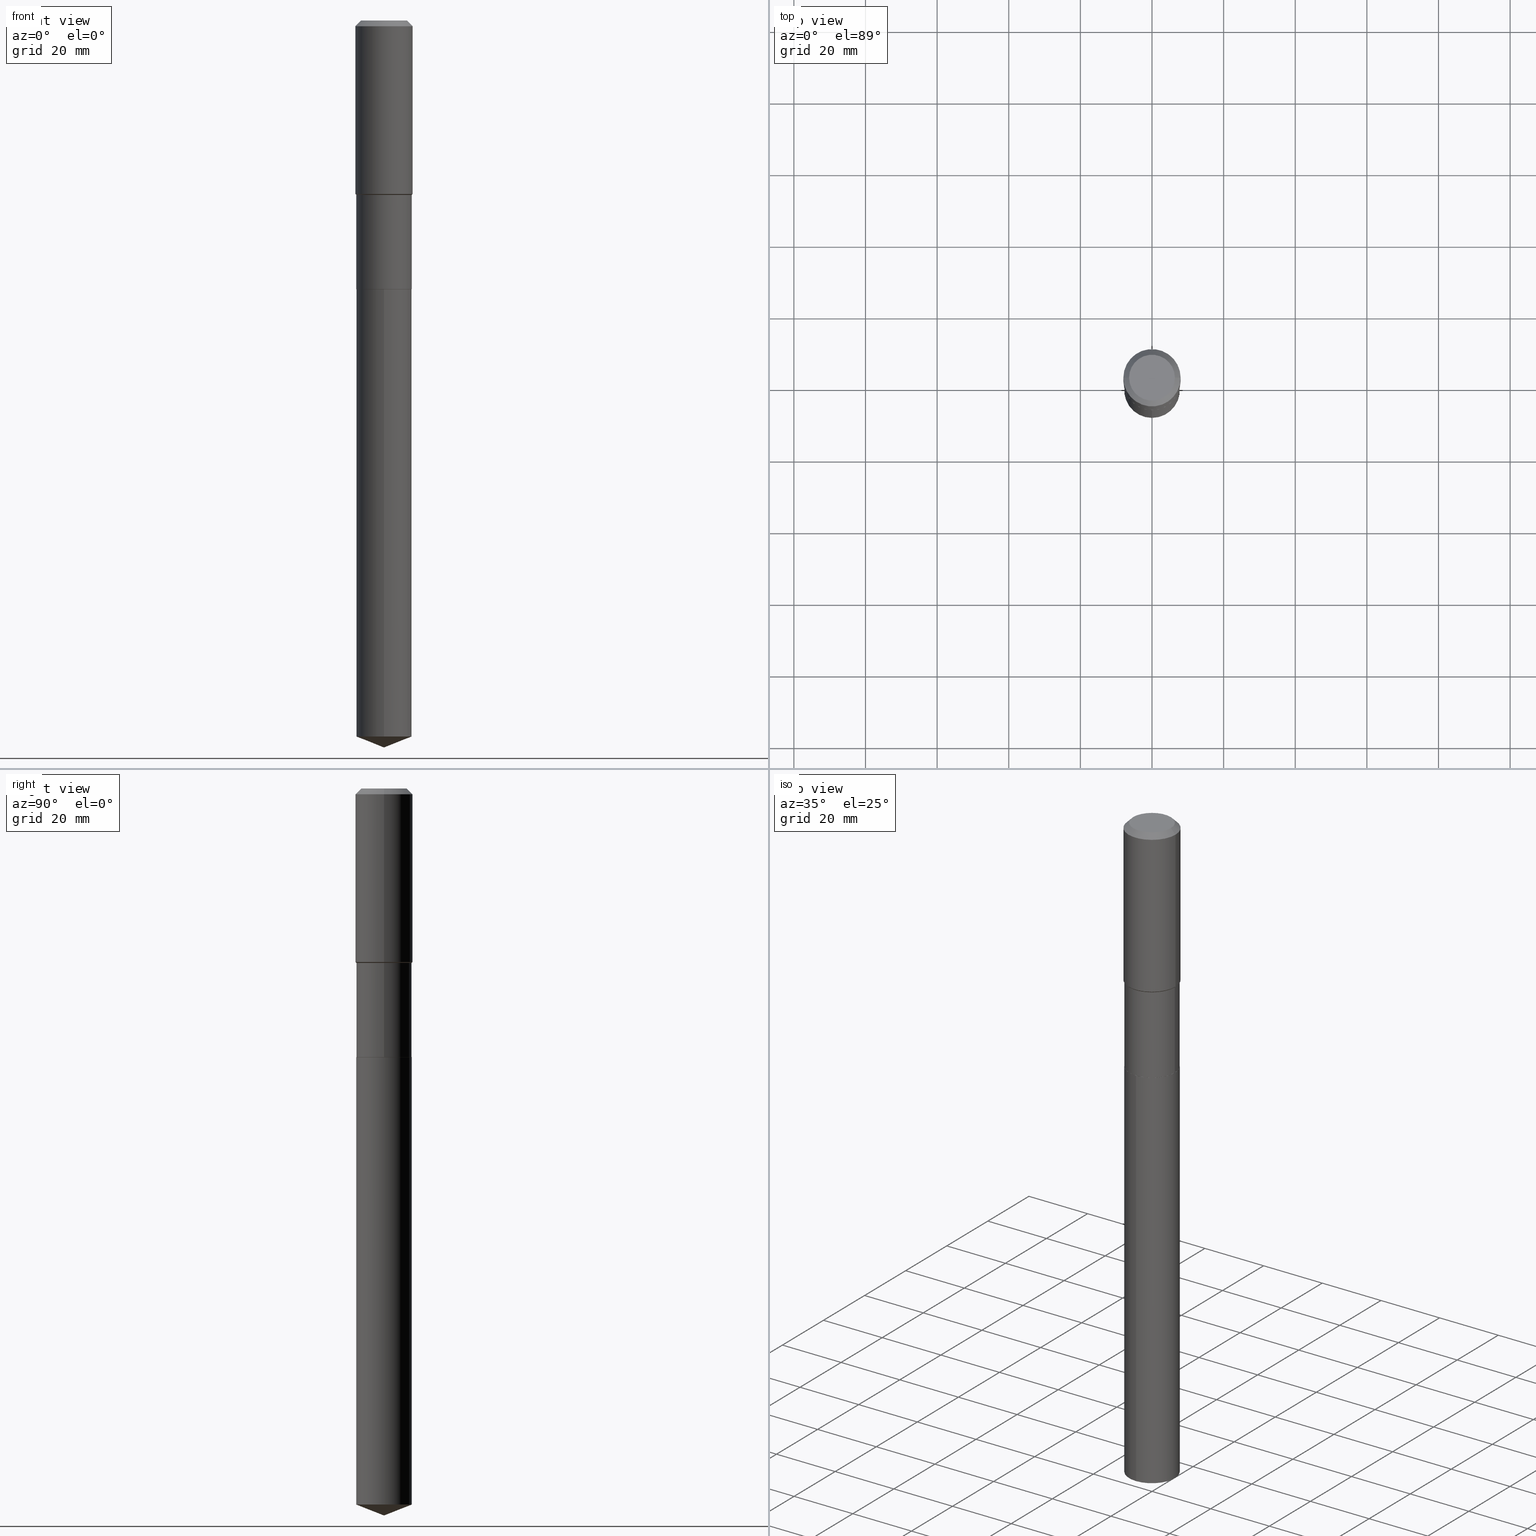
[diagram: canonical four-view strip — front | top / right | iso, engineering-drawing reading convention]
A machine part, canonical four-view strip (front | top / right | iso — engineering-drawing reading convention). The complete STEP part file that produces these views, byte-faithful:
ISO-10303-21;
HEADER;
FILE_DESCRIPTION (( 'STEP AP203' ),
    '1' );
FILE_NAME ('66706.STEP',
    '2024-04-25T04:09:05',
    ( '' ),
    ( '' ),
    'SwSTEP 2.0',
    'SolidWorks 2023',
    '' );
FILE_SCHEMA (( 'CONFIG_CONTROL_DESIGN' ));
ENDSEC;

DATA;
#1 = CIRCLE ( 'NONE', #402, 0.3050999999999998158 ) ;
#2 = LINE ( 'NONE', #180, #73 ) ;
#3 = ORIENTED_EDGE ( 'NONE', *, *, #69, .T. ) ;
#4 = APPLICATION_CONTEXT ( 'configuration controlled 3d designs of mechanical parts and assemblies' ) ;
#5 = ADVANCED_FACE ( 'NONE', ( #58 ), #164, .T. ) ;
#6 = ORIENTED_EDGE ( 'NONE', *, *, #322, .F. ) ;
#7 = PERSON_AND_ORGANIZATION_ROLE ( 'design_supplier' ) ;
#8 = CARTESIAN_POINT ( 'NONE',  ( 0.000000000000000000, 0.000000000000000000, 0.000000000000000000 ) ) ;
#9 = AXIS2_PLACEMENT_3D ( 'NONE', #141, #109, #323 ) ;
#10 = APPROVAL_DATE_TIME ( #302, #228 ) ;
#11 = AXIS2_PLACEMENT_3D ( 'NONE', #354, #18, #52 ) ;
#12 = AXIS2_PLACEMENT_3D ( 'NONE', #182, #300, #450 ) ;
#13 = SECURITY_CLASSIFICATION ( '', '', #155 ) ;
#14 = EDGE_LOOP ( 'NONE', ( #186, #464, #457 ) ) ;
#15 = EDGE_CURVE ( 'NONE', #431, #48, #161, .T. ) ;
#16 = DATE_AND_TIME ( #118, #394 ) ;
#17 = DIRECTION ( 'NONE',  ( -1.000000000000000000, 6.982962677686266711E-15, 0.000000000000000000 ) ) ;
#18 = DIRECTION ( 'NONE',  ( -2.445478870628142678E-29, 3.491466925987928451E-15, 1.000000000000000000 ) ) ;
#19 = PERSON_AND_ORGANIZATION ( #358, #266 ) ;
#20 = VERTEX_POINT ( 'NONE', #128 ) ;
#21 = CARTESIAN_POINT ( 'NONE',  ( 1.925057921245601047E-28, -2.748458359727601433E-14, -7.871917913889882712 ) ) ;
#22 = VECTOR ( 'NONE', #478, 39.37007874015748143 ) ;
#23 = PLANE ( 'NONE',  #334 ) ;
#24 = ADVANCED_FACE ( 'NONE', ( #348 ), #275, .T. ) ;
#25 = FACE_OUTER_BOUND ( 'NONE', #126, .T. ) ;
#26 = CC_DESIGN_PERSON_AND_ORGANIZATION_ASSIGNMENT ( #195, #7, ( #419 ) ) ;
#27 = CARTESIAN_POINT ( 'NONE',  ( -0.2519600000000000173, 1.869391481036695286E-15, 3.855188123703182704E-18 ) ) ;
#28 = SHAPE_DEFINITION_REPRESENTATION ( #313, #74 ) ;
#29 = DIRECTION ( 'NONE',  ( 1.000000000000000000, -6.982962677686263555E-15, 0.000000000000000000 ) ) ;
#30 = CONICAL_SURFACE ( 'NONE', #244, 0.3149500000000000077, 0.7853981633974452814 ) ;
#31 = AXIS2_PLACEMENT_3D ( 'NONE', #422, #38, #257 ) ;
#32 = CARTESIAN_POINT ( 'NONE',  ( 7.219513009619761960E-29, -1.030755120853273430E-14, -2.952200000000000379 ) ) ;
#33 = DIRECTION ( 'NONE',  ( -6.982962677686265133E-15, -1.000000000000000000, 3.581577179500837048E-15 ) ) ;
#34 = PRODUCT_DEFINITION ( 'UNKNOWN', '', #419, #284 ) ;
#35 = CARTESIAN_POINT ( 'NONE',  ( 0.3149500000000002298, -8.855967841908689792E-15, -1.906549999999999967 ) ) ;
#36 = ORIENTED_EDGE ( 'NONE', *, *, #212, .T. ) ;
#37 = CIRCLE ( 'NONE', #178, 0.3050999999999999823 ) ;
#38 = DIRECTION ( 'NONE',  ( -2.445468806185136597E-29, 3.491481338843145583E-15, 1.000000000000000000 ) ) ;
#39 = EDGE_CURVE ( 'NONE', #218, #241, #396, .T. ) ;
#40 = VERTEX_POINT ( 'NONE', #27 ) ;
#41 = DIRECTION ( 'NONE',  ( 0.7071067811865453523, -7.319954787623248157E-15, -0.7071067811865496822 ) ) ;
#42 = EDGE_LOOP ( 'NONE', ( #114, #385 ) ) ;
#43 = DIRECTION ( 'NONE',  ( -2.445468806185136597E-29, 3.491481338843145583E-15, 1.000000000000000000 ) ) ;
#44 = ORIENTED_EDGE ( 'NONE', *, *, #482, .T. ) ;
#45 = ADVANCED_FACE ( 'NONE', ( #103 ), #248, .T. ) ;
#46 =( GEOMETRIC_REPRESENTATION_CONTEXT ( 3 ) GLOBAL_UNCERTAINTY_ASSIGNED_CONTEXT ( ( #477 ) ) GLOBAL_UNIT_ASSIGNED_CONTEXT ( ( #220, #375, #176 ) ) REPRESENTATION_CONTEXT ( 'NONE', 'WORKASPACE' ) );
#47 = CALENDAR_DATE ( 2024, 25, 4 ) ;
#48 = VERTEX_POINT ( 'NONE', #251 ) ;
#49 = EDGE_CURVE ( 'NONE', #218, #310, #1, .T. ) ;
#50 = APPLICATION_PROTOCOL_DEFINITION ( 'international standard', 'config_control_design', 1994, #234 ) ;
#51 = CARTESIAN_POINT ( 'NONE',  ( 2.167865886804137722E-15, 0.3050999999999896573, -2.952700000000001435 ) ) ;
#52 = DIRECTION ( 'NONE',  ( -6.982962677686266711E-15, -1.000000000000000000, 3.498627837350013689E-15 ) ) ;
#53 = LINE ( 'NONE', #462, #460 ) ;
#54 = ORIENTED_EDGE ( 'NONE', *, *, #91, .T. ) ;
#55 = CALENDAR_DATE ( 2024, 25, 4 ) ;
#56 = VECTOR ( 'NONE', #341, 39.37007874015748143 ) ;
#57 = FACE_OUTER_BOUND ( 'NONE', #42, .T. ) ;
#58 = FACE_OUTER_BOUND ( 'NONE', #14, .T. ) ;
#59 = CARTESIAN_POINT ( 'NONE',  ( 7.220735744022853640E-29, -1.030929694920215659E-14, -2.952700000000000546 ) ) ;
#60 = ORIENTED_EDGE ( 'NONE', *, *, #476, .T. ) ;
#61 = MANIFOLD_SOLID_BREP ( 'Body-Move/Copy2[2]', #183 ) ;
#62 = DIRECTION ( 'NONE',  ( -2.445478870628142678E-29, 3.491466925987928451E-15, 1.000000000000000000 ) ) ;
#63 = ORIENTED_EDGE ( 'NONE', *, *, #312, .T. ) ;
#64 = DIRECTION ( 'NONE',  ( -2.445478870628142678E-29, 3.491466925987928451E-15, 1.000000000000000000 ) ) ;
#65 = CLOSED_SHELL ( 'NONE', ( #198, #297, #5, #357, #376 ) ) ;
#66 = APPROVAL_PERSON_ORGANIZATION ( #87, #228, #187 ) ;
#67 = DIRECTION ( 'NONE',  ( -6.982962677686265133E-15, -1.000000000000000000, 3.581577179500837048E-15 ) ) ;
#68 = CARTESIAN_POINT ( 'NONE',  ( 0.3050999999999998158, -8.821576750721085777E-15, -1.916400000000000325 ) ) ;
#69 = EDGE_CURVE ( 'NONE', #346, #310, #107, .T. ) ;
#70 = DIRECTION ( 'NONE',  ( -0.7071067811865450192, 7.493145998870344694E-15, 0.7071067811865500152 ) ) ;
#71 = LINE ( 'NONE', #483, #373 ) ;
#72 = DIRECTION ( 'NONE',  ( 1.000000000000000000, -6.982962677686265133E-15, 4.876176775795935793E-29 ) ) ;
#73 = VECTOR ( 'NONE', #108, 39.37007874015748143 ) ;
#74 = ADVANCED_BREP_SHAPE_REPRESENTATION ( '66706', ( #384, #61, #449 ), #46 ) ;
#75 = CARTESIAN_POINT ( 'NONE',  ( 7.220735744022853640E-29, -1.030929694920215659E-14, -2.952700000000000546 ) ) ;
#76 = ORIENTED_EDGE ( 'NONE', *, *, #146, .F. ) ;
#77 = EDGE_CURVE ( 'NONE', #201, #239, #349, .T. ) ;
#78 = DIRECTION ( 'NONE',  ( 1.000000000000000000, -6.982962677686263555E-15, 0.000000000000000000 ) ) ;
#79 = VERTEX_POINT ( 'NONE', #448 ) ;
#80 = VECTOR ( 'NONE', #363, 39.37007874015748143 ) ;
#81 = CARTESIAN_POINT ( 'NONE',  ( 0.000000000000000000, 0.000000000000000000, 0.000000000000000000 ) ) ;
#82 = VERTEX_POINT ( 'NONE', #474 ) ;
#83 = ORIENTED_EDGE ( 'NONE', *, *, #303, .T. ) ;
#84 = AXIS2_PLACEMENT_3D ( 'NONE', #21, #62, #444 ) ;
#85 = CARTESIAN_POINT ( 'NONE',  ( 1.540400801016026329E-30, -2.199284095337310135E-16, -0.06299000000000036514 ) ) ;
#86 = ORIENTED_EDGE ( 'NONE', *, *, #486, .T. ) ;
#87 = PERSON_AND_ORGANIZATION ( #358, #266 ) ;
#88 = CARTESIAN_POINT ( 'NONE',  ( -2.130501912962007294E-15, -0.3051000000000103074, -2.952699999999999214 ) ) ;
#89 = ORIENTED_EDGE ( 'NONE', *, *, #370, .T. ) ;
#90 = PRODUCT ( '66706', '66706', '', ( #160 ) ) ;
#91 = EDGE_CURVE ( 'NONE', #20, #48, #113, .T. ) ;
#92 = DIRECTION ( 'NONE',  ( -2.445468806185136597E-29, 3.491481338843145583E-15, 1.000000000000000000 ) ) ;
#93 = ORIENTED_EDGE ( 'NONE', *, *, #49, .F. ) ;
#94 = CIRCLE ( 'NONE', #311, 0.3045999999999999819 ) ;
#95 = ORIENTED_EDGE ( 'NONE', *, *, #290, .F. ) ;
#96 = CARTESIAN_POINT ( 'NONE',  ( 1.925057921245601047E-28, -2.748458359727601433E-14, -7.871917913889882712 ) ) ;
#97 = ORIENTED_EDGE ( 'NONE', *, *, #39, .F. ) ;
#98 = ADVANCED_FACE ( 'NONE', ( #484 ), #425, .T. ) ;
#99 = DIRECTION ( 'NONE',  ( -2.445478870628142678E-29, 3.491466925987928451E-15, 1.000000000000000000 ) ) ;
#100 = CC_DESIGN_PERSON_AND_ORGANIZATION_ASSIGNMENT ( #19, #386, ( #90 ) ) ;
#101 = CARTESIAN_POINT ( 'NONE',  ( 1.954451220311812961E-28, -2.790415281918812321E-14, -7.992100000000000648 ) ) ;
#102 = VECTOR ( 'NONE', #41, 39.37007874015748143 ) ;
#103 = FACE_OUTER_BOUND ( 'NONE', #159, .T. ) ;
#104 = ADVANCED_FACE ( 'NONE', ( #168 ), #122, .F. ) ;
#105 = DIRECTION ( 'NONE',  ( 6.611014441532064222E-15, 0.9304175679820269051, 0.3665012267242913624 ) ) ;
#106 = CARTESIAN_POINT ( 'NONE',  ( -0.3149500000000002298, -4.418829400294962358E-15, -1.906549999999999967 ) ) ;
#107 = LINE ( 'NONE', #243, #409 ) ;
#108 = DIRECTION ( 'NONE',  ( -0.7071067811865453523, 2.468850131082234184E-15, -0.7071067811865496822 ) ) ;
#109 = DIRECTION ( 'NONE',  ( 2.445468806185136597E-29, -3.491481338843145583E-15, -1.000000000000000000 ) ) ;
#110 = EDGE_LOOP ( 'NONE', ( #44, #458 ) ) ;
#111 = DIRECTION ( 'NONE',  ( 1.000000000000000000, -6.982962677686263555E-15, 0.000000000000000000 ) ) ;
#112 = ORIENTED_EDGE ( 'NONE', *, *, #335, .T. ) ;
#113 = CIRCLE ( 'NONE', #222, 0.3149500000000000077 ) ;
#114 = ORIENTED_EDGE ( 'NONE', *, *, #281, .F. ) ;
#115 = CC_DESIGN_SECURITY_CLASSIFICATION ( #13, ( #419 ) ) ;
#116 = EDGE_CURVE ( 'NONE', #487, #239, #185, .T. ) ;
#117 = ORIENTED_EDGE ( 'NONE', *, *, #130, .F. ) ;
#118 = CALENDAR_DATE ( 2024, 25, 4 ) ;
#119 = EDGE_LOOP ( 'NONE', ( #351, #360, #86, #227 ) ) ;
#120 = ORIENTED_EDGE ( 'NONE', *, *, #77, .T. ) ;
#121 = LOCAL_TIME ( 0, 9, 5.000000000000000000, #262 ) ;
#122 = PLANE ( 'NONE',  #193 ) ;
#123 = ORIENTED_EDGE ( 'NONE', *, *, #303, .F. ) ;
#124 = ADVANCED_FACE ( 'NONE', ( #305 ), #30, .T. ) ;
#125 = PERSON_AND_ORGANIZATION ( #358, #266 ) ;
#126 = EDGE_LOOP ( 'NONE', ( #304, #63, #219, #438 ) ) ;
#127 = COORDINATED_UNIVERSAL_TIME_OFFSET ( 5, 0, .BEHIND. ) ;
#128 = CARTESIAN_POINT ( 'NONE',  ( -0.3149500000000000077, -1.200451731776128114E-15, -0.06299000000000036514 ) ) ;
#129 = CIRCLE ( 'NONE', #479, 0.3050999999999999268 ) ;
#130 = EDGE_CURVE ( 'NONE', #310, #431, #53, .T. ) ;
#131 = ORIENTED_EDGE ( 'NONE', *, *, #39, .T. ) ;
#132 = CYLINDRICAL_SURFACE ( 'NONE', #276, 0.3050999999999999823 ) ;
#133 = CARTESIAN_POINT ( 'NONE',  ( 0.3045999999999999819, -1.243630738082539227E-14, -2.952700000000000546 ) ) ;
#134 = CIRCLE ( 'NONE', #416, 0.3050999999999998158 ) ;
#135 = CARTESIAN_POINT ( 'NONE',  ( -0.3050999999999999268, 2.167865886804065147E-15, -1.500767096036771338E-29 ) ) ;
#136 = AXIS2_PLACEMENT_3D ( 'NONE', #489, #151, #145 ) ;
#137 = CC_DESIGN_APPROVAL ( #258, ( #419 ) ) ;
#138 = CARTESIAN_POINT ( 'NONE',  ( 1.954445224738545131E-28, -2.790423793286332723E-14, -7.992100000000000648 ) ) ;
#139 = DIRECTION ( 'NONE',  ( -2.445468806185136597E-29, 3.491481338843145583E-15, 1.000000000000000000 ) ) ;
#140 = DIRECTION ( 'NONE',  ( -6.497071151882117470E-15, -0.9304175679820243516, 0.3665012267242979127 ) ) ;
#141 = CARTESIAN_POINT ( 'NONE',  ( 1.540400801016026329E-30, -2.199284095337310135E-16, -0.06299000000000036514 ) ) ;
#142 = AXIS2_PLACEMENT_3D ( 'NONE', #166, #200, #408 ) ;
#143 = LINE ( 'NONE', #411, #102 ) ;
#144 = PRODUCT_RELATED_PRODUCT_CATEGORY ( 'detail', '', ( #90 ) ) ;
#145 = DIRECTION ( 'NONE',  ( 1.000000000000000000, -6.982962677686269077E-15, 0.000000000000000000 ) ) ;
#146 = EDGE_CURVE ( 'NONE', #310, #218, #134, .T. ) ;
#147 = VECTOR ( 'NONE', #70, 39.37007874015748143 ) ;
#148 = ORIENTED_EDGE ( 'NONE', *, *, #335, .F. ) ;
#149 = AXIS2_PLACEMENT_3D ( 'NONE', #298, #43, #78 ) ;
#150 = CC_DESIGN_PERSON_AND_ORGANIZATION_ASSIGNMENT ( #184, #316, ( #34 ) ) ;
#151 = DIRECTION ( 'NONE',  ( -2.445468806185136597E-29, 3.491481338843145583E-15, 1.000000000000000000 ) ) ;
#152 = ORIENTED_EDGE ( 'NONE', *, *, #447, .F. ) ;
#153 = DATE_AND_TIME ( #55, #421 ) ;
#154 = ORIENTED_EDGE ( 'NONE', *, *, #312, .F. ) ;
#155 = SECURITY_CLASSIFICATION_LEVEL ( 'unclassified' ) ;
#156 = ADVANCED_FACE ( 'NONE', ( #319 ), #236, .T. ) ;
#157 = DIRECTION ( 'NONE',  ( -2.445468806185136597E-29, 3.491481338843145583E-15, 1.000000000000000000 ) ) ;
#158 = APPROVAL_DATE_TIME ( #16, #258 ) ;
#159 = EDGE_LOOP ( 'NONE', ( #95, #272, #3, #93 ) ) ;
#160 = MECHANICAL_CONTEXT ( 'NONE', #4, 'mechanical' ) ;
#161 = LINE ( 'NONE', #467, #329 ) ;
#162 = DIRECTION ( 'NONE',  ( 2.445468806185136597E-29, -3.491481338843145583E-15, -1.000000000000000000 ) ) ;
#163 = ORIENTED_EDGE ( 'NONE', *, *, #130, .T. ) ;
#164 = CONICAL_SURFACE ( 'NONE', #11, 99.94676754583970535, 1.195550537616118625 ) ;
#165 = CIRCLE ( 'NONE', #142, 0.3149500000000002298 ) ;
#166 = CARTESIAN_POINT ( 'NONE',  ( 4.662408552432271870E-29, -6.656683746571398343E-15, -1.906549999999999967 ) ) ;
#167 = CARTESIAN_POINT ( 'NONE',  ( 7.220735744022853640E-29, -1.030929694920215659E-14, -2.952700000000000546 ) ) ;
#168 = FACE_OUTER_BOUND ( 'NONE', #110, .T. ) ;
#169 = APPROVAL_DATE_TIME ( #364, #299 ) ;
#170 = FACE_OUTER_BOUND ( 'NONE', #414, .T. ) ;
#171 = DATE_TIME_ROLE ( 'classification_date' ) ;
#172 = LINE ( 'NONE', #135, #80 ) ;
#173 = AXIS2_PLACEMENT_3D ( 'NONE', #443, #325, #208 ) ;
#174 = DIRECTION ( 'NONE',  ( -2.445468806185136597E-29, 3.491481338843145583E-15, 1.000000000000000000 ) ) ;
#175 = EDGE_CURVE ( 'NONE', #48, #20, #453, .T. ) ;
#176 =( NAMED_UNIT ( * ) SI_UNIT ( $, .STERADIAN. ) SOLID_ANGLE_UNIT ( ) );
#177 = CYLINDRICAL_SURFACE ( 'NONE', #260, 0.3149500000000001743 ) ;
#178 = AXIS2_PLACEMENT_3D ( 'NONE', #247, #252, #398 ) ;
#179 = ORIENTED_EDGE ( 'NONE', *, *, #281, .T. ) ;
#180 = CARTESIAN_POINT ( 'NONE',  ( -0.3149500000000000077, 1.979355685803558833E-15, -0.06299000000000036514 ) ) ;
#181 = VERTEX_POINT ( 'NONE', #267 ) ;
#182 = CARTESIAN_POINT ( 'NONE',  ( 0.000000000000000000, 0.000000000000000000, 0.000000000000000000 ) ) ;
#183 = CLOSED_SHELL ( 'NONE', ( #465, #124, #24, #429, #420, #45, #156, #397, #98, #104, #188, #442 ) ) ;
#184 = PERSON_AND_ORGANIZATION ( #358, #266 ) ;
#185 = LINE ( 'NONE', #51, #361 ) ;
#186 = ORIENTED_EDGE ( 'NONE', *, *, #212, .F. ) ;
#187 = APPROVAL_ROLE ( '' ) ;
#188 = ADVANCED_FACE ( 'NONE', ( #57 ), #355, .F. ) ;
#189 = DIRECTION ( 'NONE',  ( -2.445478870628142678E-29, 3.491466925987928451E-15, 1.000000000000000000 ) ) ;
#190 = DIRECTION ( 'NONE',  ( -2.445468806185136877E-29, 3.491481338843145188E-15, 1.000000000000000000 ) ) ;
#191 = PERSON_AND_ORGANIZATION ( #358, #266 ) ;
#192 = VERTEX_POINT ( 'NONE', #466 ) ;
#193 = AXIS2_PLACEMENT_3D ( 'NONE', #433, #196, #274 ) ;
#194 = CIRCLE ( 'NONE', #350, 0.3149500000000002298 ) ;
#195 = PERSON_AND_ORGANIZATION ( #358, #266 ) ;
#196 = DIRECTION ( 'NONE',  ( 2.438088387897960049E-29, -3.491481338843145188E-15, -1.000000000000000000 ) ) ;
#197 = ORIENTED_EDGE ( 'NONE', *, *, #328, .F. ) ;
#198 = ADVANCED_FACE ( 'NONE', ( #353 ), #395, .T. ) ;
#199 = CARTESIAN_POINT ( 'NONE',  ( -0.3050999999999998158, -4.523208950954941155E-15, -1.916400000000000325 ) ) ;
#200 = DIRECTION ( 'NONE',  ( -2.445468806185136597E-29, 3.491481338843145583E-15, 1.000000000000000000 ) ) ;
#201 = VERTEX_POINT ( 'NONE', #88 ) ;
#202 = AXIS2_PLACEMENT_3D ( 'NONE', #400, #283, #203 ) ;
#203 = DIRECTION ( 'NONE',  ( 1.000000000000000000, -6.982962677686263555E-15, 0.000000000000000000 ) ) ;
#204 = DIRECTION ( 'NONE',  ( 1.000000000000000000, -6.982962677686266711E-15, 0.000000000000000000 ) ) ;
#205 = DIRECTION ( 'NONE',  ( 6.982962677686265922E-15, 1.000000000000000000, -3.491466925987928451E-15 ) ) ;
#206 = PERSON_AND_ORGANIZATION ( #358, #266 ) ;
#207 = LINE ( 'NONE', #138, #426 ) ;
#208 = DIRECTION ( 'NONE',  ( -6.982962677686266711E-15, -1.000000000000000000, 3.498627837350013689E-15 ) ) ;
#209 = AXIS2_PLACEMENT_3D ( 'NONE', #418, #339, #215 ) ;
#210 = CC_DESIGN_APPROVAL ( #299, ( #13 ) ) ;
#211 = CARTESIAN_POINT ( 'NONE',  ( 7.220735744022853640E-29, -1.030929694920215659E-14, -2.952700000000000546 ) ) ;
#212 = EDGE_CURVE ( 'NONE', #79, #487, #288, .T. ) ;
#213 = LENGTH_MEASURE_WITH_UNIT ( LENGTH_MEASURE( 0.02539999999999999897 ), #259 );
#214 = DIRECTION ( 'NONE',  ( -2.445468806185136597E-29, 3.491481338843145583E-15, 1.000000000000000000 ) ) ;
#215 = DIRECTION ( 'NONE',  ( 1.000000000000000000, -6.982962677686266711E-15, 4.876115136096691995E-29 ) ) ;
#216 = EDGE_CURVE ( 'NONE', #241, #20, #286, .T. ) ;
#217 = CIRCLE ( 'NONE', #202, 0.3045999999999999819 ) ;
#218 = VERTEX_POINT ( 'NONE', #326 ) ;
#219 = ORIENTED_EDGE ( 'NONE', *, *, #15, .T. ) ;
#220 =( CONVERSION_BASED_UNIT ( 'INCH', #213 ) LENGTH_UNIT ( ) NAMED_UNIT ( #225 ) );
#221 = ORIENTED_EDGE ( 'NONE', *, *, #269, .T. ) ;
#222 = AXIS2_PLACEMENT_3D ( 'NONE', #401, #333, #204 ) ;
#223 = AXIS2_PLACEMENT_3D ( 'NONE', #85, #92, #345 ) ;
#224 = DIRECTION ( 'NONE',  ( 1.000000000000000000, 0.000000000000000000, 0.000000000000000000 ) ) ;
#225 = DIMENSIONAL_EXPONENTS ( 1.000000000000000000, 0.000000000000000000, 0.000000000000000000, 0.000000000000000000, 0.000000000000000000, 0.000000000000000000, 0.000000000000000000 ) ;
#226 = DIRECTION ( 'NONE',  ( -2.438088387897960049E-29, 3.491481338843145188E-15, 1.000000000000000000 ) ) ;
#227 = ORIENTED_EDGE ( 'NONE', *, *, #287, .F. ) ;
#228 = APPROVAL ( #231, 'UNSPECIFIED' ) ;
#229 = CARTESIAN_POINT ( 'NONE',  ( 1.540400801016026329E-30, -2.199284095337310135E-16, -0.06299000000000036514 ) ) ;
#230 = EDGE_LOOP ( 'NONE', ( #83, #470, #374, #435 ) ) ;
#231 = APPROVAL_STATUS ( 'not_yet_approved' ) ;
#232 = DIRECTION ( 'NONE',  ( -2.445468806185136597E-29, 3.491481338843145583E-15, 1.000000000000000000 ) ) ;
#233 = EDGE_CURVE ( 'NONE', #487, #181, #382, .T. ) ;
#234 = APPLICATION_CONTEXT ( 'configuration controlled 3d designs of mechanical parts and assemblies' ) ;
#235 = ORIENTED_EDGE ( 'NONE', *, *, #116, .T. ) ;
#236 = CONICAL_SURFACE ( 'NONE', #461, 0.3050999999999998158, 0.7853981633974447263 ) ;
#237 = CIRCLE ( 'NONE', #31, 0.2519600000000000173 ) ;
#238 = CC_DESIGN_DATE_AND_TIME_ASSIGNMENT ( #245, #171, ( #13 ) ) ;
#239 = VERTEX_POINT ( 'NONE', #473 ) ;
#240 = DIRECTION ( 'NONE',  ( -2.445468806185136597E-29, 3.491481338843145583E-15, 1.000000000000000000 ) ) ;
#241 = VERTEX_POINT ( 'NONE', #106 ) ;
#242 = CARTESIAN_POINT ( 'NONE',  ( 4.662408552432271870E-29, -6.656683746571398343E-15, -1.906549999999999967 ) ) ;
#243 = CARTESIAN_POINT ( 'NONE',  ( 0.3050999999999999268, -2.130501912962079080E-15, 1.487721534295339594E-29 ) ) ;
#244 = AXIS2_PLACEMENT_3D ( 'NONE', #229, #162, #17 ) ;
#245 = DATE_AND_TIME ( #282, #121 ) ;
#246 = AXIS2_PLACEMENT_3D ( 'NONE', #59, #347, #469 ) ;
#247 = CARTESIAN_POINT ( 'NONE',  ( 7.219513009619761960E-29, -1.030755120853273430E-14, -2.952200000000000379 ) ) ;
#248 = CYLINDRICAL_SURFACE ( 'NONE', #309, 0.3050999999999999268 ) ;
#249 = APPROVAL_STATUS ( 'not_yet_approved' ) ;
#250 = DIRECTION ( 'NONE',  ( 1.000000000000000000, -6.982962677686268288E-15, 0.000000000000000000 ) ) ;
#251 = CARTESIAN_POINT ( 'NONE',  ( 0.3149500000000000077, -2.419212504871020909E-15, -0.06299000000000036514 ) ) ;
#252 = DIRECTION ( 'NONE',  ( -2.445468806185136597E-29, 3.491481338843145583E-15, 1.000000000000000000 ) ) ;
#253 = DIRECTION ( 'NONE',  ( -2.445468806185136877E-29, 3.491481338843145188E-15, 1.000000000000000000 ) ) ;
#254 = DIRECTION ( 'NONE',  ( 1.000000000000000000, -6.982962677686265922E-15, 4.876176775795935232E-29 ) ) ;
#255 = CONICAL_SURFACE ( 'NONE', #149, 0.3045999999999999819, 0.7853981633972775267 ) ;
#256 = CARTESIAN_POINT ( 'NONE',  ( 0.000000000000000000, 0.000000000000000000, 0.000000000000000000 ) ) ;
#257 = DIRECTION ( 'NONE',  ( 1.000000000000000000, -6.982962677686266711E-15, 4.876115136096691995E-29 ) ) ;
#258 = APPROVAL ( #314, 'UNSPECIFIED' ) ;
#259 =( LENGTH_UNIT ( ) NAMED_UNIT ( * ) SI_UNIT ( $, .METRE. ) );
#260 = AXIS2_PLACEMENT_3D ( 'NONE', #81, #214, #254 ) ;
#261 = EDGE_LOOP ( 'NONE', ( #221, #399, #76, #490 ) ) ;
#262 = COORDINATED_UNIVERSAL_TIME_OFFSET ( 5, 0, .BEHIND. ) ;
#263 = EDGE_CURVE ( 'NONE', #306, #346, #410, .T. ) ;
#264 = EDGE_LOOP ( 'NONE', ( #179, #336, #387, #265 ) ) ;
#265 = ORIENTED_EDGE ( 'NONE', *, *, #405, .F. ) ;
#266 = ORGANIZATION ( 'UNSPECIFIED', 'UNSPECIFIED', '' ) ;
#267 = CARTESIAN_POINT ( 'NONE',  ( -2.130501912961886993E-15, -0.3051000000000273493, -7.871917913889880936 ) ) ;
#268 = DIRECTION ( 'NONE',  ( 1.000000000000000000, -6.982962677686265922E-15, 4.876176775795935232E-29 ) ) ;
#269 = EDGE_CURVE ( 'NONE', #346, #306, #37, .T. ) ;
#270 = PERSON_AND_ORGANIZATION_ROLE ( 'classification_officer' ) ;
#271 = CARTESIAN_POINT ( 'NONE',  ( 4.686496420173196360E-29, -6.691074837759005513E-15, -1.916400000000000325 ) ) ;
#272 = ORIENTED_EDGE ( 'NONE', *, *, #263, .T. ) ;
#273 = PERSON_AND_ORGANIZATION_ROLE ( 'creator' ) ;
#274 = DIRECTION ( 'NONE',  ( -1.000000000000000000, 6.982962677686265922E-15, -4.876176775795935793E-29 ) ) ;
#275 = CYLINDRICAL_SURFACE ( 'NONE', #291, 0.3149500000000001743 ) ;
#276 = AXIS2_PLACEMENT_3D ( 'NONE', #439, #99, #365 ) ;
#277 = DIRECTION ( 'NONE',  ( 0.7071067811865450192, -2.468850131082230634E-15, 0.7071067811865500152 ) ) ;
#278 = ORIENTED_EDGE ( 'NONE', *, *, #405, .T. ) ;
#279 = FACE_OUTER_BOUND ( 'NONE', #119, .T. ) ;
#280 = DIRECTION ( 'NONE',  ( -2.445478870628142678E-29, 3.491466925987928451E-15, 1.000000000000000000 ) ) ;
#281 = EDGE_CURVE ( 'NONE', #356, #82, #94, .T. ) ;
#282 = CALENDAR_DATE ( 2024, 25, 4 ) ;
#283 = DIRECTION ( 'NONE',  ( -2.445468806185136597E-29, 3.491481338843145583E-15, 1.000000000000000000 ) ) ;
#284 = DESIGN_CONTEXT ( 'detailed design', #234, 'design' ) ;
#285 = APPROVAL_ROLE ( '' ) ;
#286 = LINE ( 'NONE', #289, #22 ) ;
#287 = EDGE_CURVE ( 'NONE', #239, #201, #403, .T. ) ;
#288 = LINE ( 'NONE', #101, #441 ) ;
#289 = CARTESIAN_POINT ( 'NONE',  ( -0.3149500000000001743, 2.237854346276436774E-15, -1.549218606675783237E-29 ) ) ;
#290 = EDGE_CURVE ( 'NONE', #306, #218, #172, .T. ) ;
#291 = AXIS2_PLACEMENT_3D ( 'NONE', #8, #157, #268 ) ;
#292 = LINE ( 'NONE', #372, #434 ) ;
#293 = AXIS2_PLACEMENT_3D ( 'NONE', #32, #367, #250 ) ;
#294 = ORIENTED_EDGE ( 'NONE', *, *, #175, .T. ) ;
#295 = FACE_OUTER_BOUND ( 'NONE', #261, .T. ) ;
#296 = ORIENTED_EDGE ( 'NONE', *, *, #49, .T. ) ;
#297 = ADVANCED_FACE ( 'NONE', ( #331 ), #362, .T. ) ;
#298 = CARTESIAN_POINT ( 'NONE',  ( 7.220735744022853640E-29, -1.030929694920215659E-14, -2.952700000000000546 ) ) ;
#299 = APPROVAL ( #249, 'UNSPECIFIED' ) ;
#300 = DIRECTION ( 'NONE',  ( -2.445468806185136597E-29, 3.491481338843145583E-15, 1.000000000000000000 ) ) ;
#301 = CIRCLE ( 'NONE', #209, 0.2519600000000000173 ) ;
#302 = DATE_AND_TIME ( #47, #404 ) ;
#303 = EDGE_CURVE ( 'NONE', #431, #241, #165, .T. ) ;
#304 = ORIENTED_EDGE ( 'NONE', *, *, #216, .F. ) ;
#305 = FACE_OUTER_BOUND ( 'NONE', #389, .T. ) ;
#306 = VERTEX_POINT ( 'NONE', #475 ) ;
#307 = COORDINATED_UNIVERSAL_TIME_OFFSET ( 5, 0, .BEHIND. ) ;
#308 = CARTESIAN_POINT ( 'NONE',  ( 7.220735744022853640E-29, -1.030929694920215659E-14, -2.952700000000000546 ) ) ;
#309 = AXIS2_PLACEMENT_3D ( 'NONE', #481, #366, #72 ) ;
#310 = VERTEX_POINT ( 'NONE', #68 ) ;
#311 = AXIS2_PLACEMENT_3D ( 'NONE', #406, #174, #29 ) ;
#312 = EDGE_CURVE ( 'NONE', #241, #431, #194, .T. ) ;
#313 = PRODUCT_DEFINITION_SHAPE ( 'NONE', 'NONE',  #34 ) ;
#314 = APPROVAL_STATUS ( 'not_yet_approved' ) ;
#315 = ORIENTED_EDGE ( 'NONE', *, *, #476, .F. ) ;
#316 = PERSON_AND_ORGANIZATION_ROLE ( 'creator' ) ;
#317 = DIRECTION ( 'NONE',  ( 1.000000000000000000, -6.982962677686265922E-15, 4.876176775795935793E-29 ) ) ;
#318 = ORIENTED_EDGE ( 'NONE', *, *, #146, .T. ) ;
#319 = FACE_OUTER_BOUND ( 'NONE', #344, .T. ) ;
#320 = EDGE_LOOP ( 'NONE', ( #318, #131, #123, #117 ) ) ;
#321 = CARTESIAN_POINT ( 'NONE',  ( 0.3050999999999999823, -1.243805312149481457E-14, -2.952200000000000379 ) ) ;
#322 = EDGE_CURVE ( 'NONE', #79, #181, #207, .T. ) ;
#323 = DIRECTION ( 'NONE',  ( -1.000000000000000000, 6.982962677686266711E-15, 0.000000000000000000 ) ) ;
#324 = CALENDAR_DATE ( 2024, 25, 4 ) ;
#325 = DIRECTION ( 'NONE',  ( -2.445478870628142678E-29, 3.491466925987928451E-15, 1.000000000000000000 ) ) ;
#326 = CARTESIAN_POINT ( 'NONE',  ( -0.3050999999999998158, -6.331447136341804760E-15, -1.916400000000000325 ) ) ;
#327 = CARTESIAN_POINT ( 'NONE',  ( 4.686496420173196360E-29, -6.691074837759005513E-15, -1.916400000000000325 ) ) ;
#328 = EDGE_CURVE ( 'NONE', #82, #306, #71, .T. ) ;
#329 = VECTOR ( 'NONE', #190, 39.37007874015748143 ) ;
#330 = CONICAL_SURFACE ( 'NONE', #136, 0.3050999999999998158, 0.7853981633974447263 ) ;
#331 = FACE_OUTER_BOUND ( 'NONE', #451, .T. ) ;
#332 = DIRECTION ( 'NONE',  ( -2.445478870628142678E-29, 3.491466925987928451E-15, 1.000000000000000000 ) ) ;
#333 = DIRECTION ( 'NONE',  ( -2.445468806185136597E-29, 3.491481338843145583E-15, 1.000000000000000000 ) ) ;
#334 = AXIS2_PLACEMENT_3D ( 'NONE', #167, #440, #205 ) ;
#335 = EDGE_CURVE ( 'NONE', #181, #487, #129, .T. ) ;
#336 = ORIENTED_EDGE ( 'NONE', *, *, #328, .T. ) ;
#337 = DIRECTION ( 'NONE',  ( -2.445478870628142678E-29, 3.491466925987928451E-15, 1.000000000000000000 ) ) ;
#338 = EDGE_LOOP ( 'NONE', ( #197, #89, #278, #432 ) ) ;
#339 = DIRECTION ( 'NONE',  ( -2.445468806185136597E-29, 3.491481338843145583E-15, 1.000000000000000000 ) ) ;
#340 = EDGE_LOOP ( 'NONE', ( #112, #235, #428, #423 ) ) ;
#341 = DIRECTION ( 'NONE',  ( 0.7071067811864267805, -2.468850131080992517E-15, 0.7071067811866682540 ) ) ;
#342 = AXIS2_PLACEMENT_3D ( 'NONE', #308, #226, #317 ) ;
#343 = APPROVAL_PERSON_ORGANIZATION ( #125, #258, #430 ) ;
#344 = EDGE_LOOP ( 'NONE', ( #97, #296, #163, #154 ) ) ;
#345 = DIRECTION ( 'NONE',  ( 1.000000000000000000, -6.982962677686266711E-15, 0.000000000000000000 ) ) ;
#346 = VERTEX_POINT ( 'NONE', #321 ) ;
#347 = DIRECTION ( 'NONE',  ( -2.445478870628142678E-29, 3.491466925987928451E-15, 1.000000000000000000 ) ) ;
#348 = FACE_OUTER_BOUND ( 'NONE', #230, .T. ) ;
#349 = CIRCLE ( 'NONE', #381, 0.3050999999999999823 ) ;
#350 = AXIS2_PLACEMENT_3D ( 'NONE', #242, #240, #480 ) ;
#351 = ORIENTED_EDGE ( 'NONE', *, *, #116, .F. ) ;
#352 = CC_DESIGN_APPROVAL ( #228, ( #34 ) ) ;
#353 = FACE_OUTER_BOUND ( 'NONE', #340, .T. ) ;
#354 = CARTESIAN_POINT ( 'NONE',  ( -7.673421372935505662E-28, 1.095551324187746195E-13, 31.37797874015748079 ) ) ;
#355 = PLANE ( 'NONE',  #342 ) ;
#356 = VERTEX_POINT ( 'NONE', #133 ) ;
#357 = ADVANCED_FACE ( 'NONE', ( #279 ), #132, .T. ) ;
#358 = PERSON ( 'UNSPECIFIED', 'UNSPECIFIED', 'UNSPECIFIED', ('UNSPECIFIED'), ('UNSPECIFIED'), ('UNSPECIFIED') ) ;
#359 = DIRECTION ( 'NONE',  ( -6.982962677686265133E-15, -1.000000000000000000, 3.581577179500837836E-15 ) ) ;
#360 = ORIENTED_EDGE ( 'NONE', *, *, #233, .T. ) ;
#361 = VECTOR ( 'NONE', #189, 39.37007874015748143 ) ;
#362 = CONICAL_SURFACE ( 'NONE', #173, 99.94676754583970535, 1.195550537616118625 ) ;
#363 = DIRECTION ( 'NONE',  ( -2.445468806185136877E-29, 3.491481338843145188E-15, 1.000000000000000000 ) ) ;
#364 = DATE_AND_TIME ( #324, #471 ) ;
#365 = DIRECTION ( 'NONE',  ( -6.982962677686265133E-15, -1.000000000000000000, 3.581577179500837048E-15 ) ) ;
#366 = DIRECTION ( 'NONE',  ( -2.445468806185136597E-29, 3.491481338843145583E-15, 1.000000000000000000 ) ) ;
#367 = DIRECTION ( 'NONE',  ( -2.445468806185136597E-29, 3.491481338843145583E-15, 1.000000000000000000 ) ) ;
#368 = DIRECTION ( 'NONE',  ( -0.7071067811864267805, 7.493145998869918709E-15, 0.7071067811866682540 ) ) ;
#369 = CARTESIAN_POINT ( 'NONE',  ( 0.3045999999999999819, -1.243630738082539227E-14, -2.952700000000000546 ) ) ;
#370 = EDGE_CURVE ( 'NONE', #82, #356, #217, .T. ) ;
#371 = DIRECTION ( 'NONE',  ( 0.000000000000000000, 0.000000000000000000, 1.000000000000000000 ) ) ;
#372 = CARTESIAN_POINT ( 'NONE',  ( -2.130501912962007294E-15, -0.3051000000000103074, -2.952699999999999214 ) ) ;
#373 = VECTOR ( 'NONE', #368, 39.37007874015748143 ) ;
#374 = ORIENTED_EDGE ( 'NONE', *, *, #175, .F. ) ;
#375 =( NAMED_UNIT ( * ) PLANE_ANGLE_UNIT ( ) SI_UNIT ( $, .RADIAN. ) );
#376 = ADVANCED_FACE ( 'NONE', ( #170 ), #23, .F. ) ;
#377 = ORIENTED_EDGE ( 'NONE', *, *, #412, .F. ) ;
#378 = FACE_OUTER_BOUND ( 'NONE', #320, .T. ) ;
#379 = CC_DESIGN_PERSON_AND_ORGANIZATION_ASSIGNMENT ( #459, #270, ( #13 ) ) ;
#380 = COORDINATED_UNIVERSAL_TIME_OFFSET ( 5, 0, .BEHIND. ) ;
#381 = AXIS2_PLACEMENT_3D ( 'NONE', #211, #280, #33 ) ;
#382 = CIRCLE ( 'NONE', #84, 0.3050999999999999268 ) ;
#383 = DIRECTION ( 'NONE',  ( -2.445468806185136597E-29, 3.491481338843145583E-15, 1.000000000000000000 ) ) ;
#384 = MANIFOLD_SOLID_BREP ( 'Body-Move/Copy2[1]', #65 ) ;
#385 = ORIENTED_EDGE ( 'NONE', *, *, #370, .F. ) ;
#386 = PERSON_AND_ORGANIZATION_ROLE ( 'design_owner' ) ;
#387 = ORIENTED_EDGE ( 'NONE', *, *, #269, .F. ) ;
#388 = DATE_TIME_ROLE ( 'creation_date' ) ;
#389 = EDGE_LOOP ( 'NONE', ( #152, #424, #294, #315 ) ) ;
#390 = CC_DESIGN_PERSON_AND_ORGANIZATION_ASSIGNMENT ( #191, #273, ( #419 ) ) ;
#391 = CARTESIAN_POINT ( 'NONE',  ( 4.686496420173196360E-29, -6.691074837759005513E-15, -1.916400000000000325 ) ) ;
#392 = CONICAL_SURFACE ( 'NONE', #454, 0.3045999999999999819, 0.7853981633972775267 ) ;
#393 = ORIENTED_EDGE ( 'NONE', *, *, #482, .F. ) ;
#394 = LOCAL_TIME ( 0, 9, 5.000000000000000000, #307 ) ;
#395 = CYLINDRICAL_SURFACE ( 'NONE', #246, 0.3050999999999999823 ) ;
#396 = LINE ( 'NONE', #199, #147 ) ;
#397 = ADVANCED_FACE ( 'NONE', ( #25 ), #177, .T. ) ;
#398 = DIRECTION ( 'NONE',  ( 1.000000000000000000, -6.982962677686268288E-15, 0.000000000000000000 ) ) ;
#399 = ORIENTED_EDGE ( 'NONE', *, *, #290, .T. ) ;
#400 = CARTESIAN_POINT ( 'NONE',  ( 7.220735744022853640E-29, -1.030929694920215659E-14, -2.952700000000000546 ) ) ;
#401 = CARTESIAN_POINT ( 'NONE',  ( 1.540400801016026329E-30, -2.199284095337310135E-16, -0.06299000000000036514 ) ) ;
#402 = AXIS2_PLACEMENT_3D ( 'NONE', #327, #139, #445 ) ;
#403 = CIRCLE ( 'NONE', #417, 0.3050999999999999823 ) ;
#404 = LOCAL_TIME ( 0, 9, 5.000000000000000000, #380 ) ;
#405 = EDGE_CURVE ( 'NONE', #356, #346, #452, .T. ) ;
#406 = CARTESIAN_POINT ( 'NONE',  ( 7.220735744022853640E-29, -1.030929694920215659E-14, -2.952700000000000546 ) ) ;
#407 = CARTESIAN_POINT ( 'NONE',  ( 7.220735744022853640E-29, -1.030929694920215659E-14, -2.952700000000000546 ) ) ;
#408 = DIRECTION ( 'NONE',  ( 1.000000000000000000, -6.982962677686268288E-15, 0.000000000000000000 ) ) ;
#409 = VECTOR ( 'NONE', #253, 39.37007874015748143 ) ;
#410 = CIRCLE ( 'NONE', #293, 0.3050999999999999823 ) ;
#411 = CARTESIAN_POINT ( 'NONE',  ( 0.3149500000000000077, -2.380642253931875190E-15, -0.06299000000000036514 ) ) ;
#412 = EDGE_CURVE ( 'NONE', #192, #48, #143, .T. ) ;
#413 = CARTESIAN_POINT ( 'NONE',  ( 2.167865886804257235E-15, 0.3050999999999724488, -7.871917913889883600 ) ) ;
#414 = EDGE_LOOP ( 'NONE', ( #120, #463 ) ) ;
#415 = CYLINDRICAL_SURFACE ( 'NONE', #12, 0.3050999999999999268 ) ;
#416 = AXIS2_PLACEMENT_3D ( 'NONE', #271, #232, #427 ) ;
#417 = AXIS2_PLACEMENT_3D ( 'NONE', #407, #332, #67 ) ;
#418 = CARTESIAN_POINT ( 'NONE',  ( -9.427742298522569579E-47, 1.346031739168368629E-32, 3.855188123715871501E-18 ) ) ;
#419 = PRODUCT_DEFINITION_FORMATION_WITH_SPECIFIED_SOURCE ( 'ANY', '', #90, .NOT_KNOWN. ) ;
#420 = ADVANCED_FACE ( 'NONE', ( #295 ), #415, .T. ) ;
#421 = LOCAL_TIME ( 0, 9, 5.000000000000000000, #127 ) ;
#422 = CARTESIAN_POINT ( 'NONE',  ( -9.427742298522569579E-47, 1.346031739168368629E-32, 3.855188123715871501E-18 ) ) ;
#423 = ORIENTED_EDGE ( 'NONE', *, *, #486, .F. ) ;
#424 = ORIENTED_EDGE ( 'NONE', *, *, #412, .T. ) ;
#425 = CONICAL_SURFACE ( 'NONE', #9, 0.3149500000000000077, 0.7853981633974452814 ) ;
#426 = VECTOR ( 'NONE', #140, 39.37007874015748854 ) ;
#427 = DIRECTION ( 'NONE',  ( 1.000000000000000000, -6.982962677686269077E-15, 0.000000000000000000 ) ) ;
#428 = ORIENTED_EDGE ( 'NONE', *, *, #77, .F. ) ;
#429 = ADVANCED_FACE ( 'NONE', ( #378 ), #330, .T. ) ;
#430 = APPROVAL_ROLE ( '' ) ;
#431 = VERTEX_POINT ( 'NONE', #35 ) ;
#432 = ORIENTED_EDGE ( 'NONE', *, *, #263, .F. ) ;
#433 = CARTESIAN_POINT ( 'NONE',  ( -4.713871149261284790E-47, 6.730158695841843144E-33, 1.927594061857935750E-18 ) ) ;
#434 = VECTOR ( 'NONE', #337, 39.37007874015748143 ) ;
#435 = ORIENTED_EDGE ( 'NONE', *, *, #15, .F. ) ;
#436 = APPROVAL_PERSON_ORGANIZATION ( #206, #299, #285 ) ;
#437 = DIRECTION ( 'NONE',  ( 1.000000000000000000, -6.982962677686269077E-15, 0.000000000000000000 ) ) ;
#438 = ORIENTED_EDGE ( 'NONE', *, *, #91, .F. ) ;
#439 = CARTESIAN_POINT ( 'NONE',  ( 7.220735744022853640E-29, -1.030929694920215659E-14, -2.952700000000000546 ) ) ;
#440 = DIRECTION ( 'NONE',  ( 2.445478870628142398E-29, -3.491466925987928451E-15, -1.000000000000000000 ) ) ;
#441 = VECTOR ( 'NONE', #105, 39.37007874015748143 ) ;
#442 = ADVANCED_FACE ( 'NONE', ( #488 ), #392, .T. ) ;
#443 = CARTESIAN_POINT ( 'NONE',  ( -7.673421372935505662E-28, 1.095551324187746195E-13, 31.37797874015748079 ) ) ;
#444 = DIRECTION ( 'NONE',  ( -6.982962677686265133E-15, -1.000000000000000000, 3.581577179500837836E-15 ) ) ;
#445 = DIRECTION ( 'NONE',  ( 1.000000000000000000, -6.982962677686269077E-15, 0.000000000000000000 ) ) ;
#446 = FACE_OUTER_BOUND ( 'NONE', #264, .T. ) ;
#447 = EDGE_CURVE ( 'NONE', #192, #40, #237, .T. ) ;
#448 = CARTESIAN_POINT ( 'NONE',  ( 1.954451168194718010E-28, -2.790415281918812321E-14, -7.992100000000000648 ) ) ;
#449 = AXIS2_PLACEMENT_3D ( 'NONE', #256, #371, #224 ) ;
#450 = DIRECTION ( 'NONE',  ( 1.000000000000000000, -6.982962677686265133E-15, 4.876176775795935793E-29 ) ) ;
#451 = EDGE_LOOP ( 'NONE', ( #6, #36, #148 ) ) ;
#452 = LINE ( 'NONE', #369, #56 ) ;
#453 = CIRCLE ( 'NONE', #223, 0.3149500000000000077 ) ;
#454 = AXIS2_PLACEMENT_3D ( 'NONE', #75, #455, #111 ) ;
#455 = DIRECTION ( 'NONE',  ( -2.445468806185136597E-29, 3.491481338843145583E-15, 1.000000000000000000 ) ) ;
#456 = EDGE_LOOP ( 'NONE', ( #377, #393, #60, #54 ) ) ;
#457 = ORIENTED_EDGE ( 'NONE', *, *, #233, .F. ) ;
#458 = ORIENTED_EDGE ( 'NONE', *, *, #447, .T. ) ;
#459 = PERSON_AND_ORGANIZATION ( #358, #266 ) ;
#460 = VECTOR ( 'NONE', #277, 39.37007874015748143 ) ;
#461 = AXIS2_PLACEMENT_3D ( 'NONE', #391, #383, #437 ) ;
#462 = CARTESIAN_POINT ( 'NONE',  ( 0.3050999999999998158, -8.821576750721085777E-15, -1.916400000000000325 ) ) ;
#463 = ORIENTED_EDGE ( 'NONE', *, *, #287, .T. ) ;
#464 = ORIENTED_EDGE ( 'NONE', *, *, #322, .T. ) ;
#465 = ADVANCED_FACE ( 'NONE', ( #446 ), #255, .T. ) ;
#466 = CARTESIAN_POINT ( 'NONE',  ( 0.2519600000000000173, -2.054606664725195058E-15, 3.855188123729206640E-18 ) ) ;
#467 = CARTESIAN_POINT ( 'NONE',  ( 0.3149500000000001743, -2.199284095337290660E-15, 1.535751875536930690E-29 ) ) ;
#468 = CC_DESIGN_DATE_AND_TIME_ASSIGNMENT ( #153, #388, ( #34 ) ) ;
#469 = DIRECTION ( 'NONE',  ( -6.982962677686265133E-15, -1.000000000000000000, 3.581577179500837048E-15 ) ) ;
#470 = ORIENTED_EDGE ( 'NONE', *, *, #216, .T. ) ;
#471 = LOCAL_TIME ( 0, 9, 5.000000000000000000, #472 ) ;
#472 = COORDINATED_UNIVERSAL_TIME_OFFSET ( 5, 0, .BEHIND. ) ;
#473 = CARTESIAN_POINT ( 'NONE',  ( 2.167865886804258812E-15, 0.3050999999999896573, -2.952700000000001435 ) ) ;
#474 = CARTESIAN_POINT ( 'NONE',  ( -0.3045999999999999819, -8.142334548902781144E-15, -2.952700000000000546 ) ) ;
#475 = CARTESIAN_POINT ( 'NONE',  ( -0.3050999999999999823, -6.331447136341803971E-15, -2.952200000000000379 ) ) ;
#476 = EDGE_CURVE ( 'NONE', #40, #20, #2, .T. ) ;
#477 = UNCERTAINTY_MEASURE_WITH_UNIT (LENGTH_MEASURE( 1.000000000000000082E-05 ), #220, 'distance_accuracy_value', 'NONE');
#478 = DIRECTION ( 'NONE',  ( -2.445468806185136877E-29, 3.491481338843145188E-15, 1.000000000000000000 ) ) ;
#479 = AXIS2_PLACEMENT_3D ( 'NONE', #96, #64, #359 ) ;
#480 = DIRECTION ( 'NONE',  ( 1.000000000000000000, -6.982962677686268288E-15, 0.000000000000000000 ) ) ;
#481 = CARTESIAN_POINT ( 'NONE',  ( 0.000000000000000000, 0.000000000000000000, 0.000000000000000000 ) ) ;
#482 = EDGE_CURVE ( 'NONE', #40, #192, #301, .T. ) ;
#483 = CARTESIAN_POINT ( 'NONE',  ( -0.3045999999999999819, -8.144983776076891556E-15, -2.952700000000000546 ) ) ;
#484 = FACE_OUTER_BOUND ( 'NONE', #456, .T. ) ;
#485 = APPLICATION_PROTOCOL_DEFINITION ( 'international standard', 'config_control_design', 1994, #4 ) ;
#486 = EDGE_CURVE ( 'NONE', #181, #201, #292, .T. ) ;
#487 = VERTEX_POINT ( 'NONE', #413 ) ;
#488 = FACE_OUTER_BOUND ( 'NONE', #338, .T. ) ;
#489 = CARTESIAN_POINT ( 'NONE',  ( 4.686496420173196360E-29, -6.691074837759005513E-15, -1.916400000000000325 ) ) ;
#490 = ORIENTED_EDGE ( 'NONE', *, *, #69, .F. ) ;
ENDSEC;
END-ISO-10303-21;
